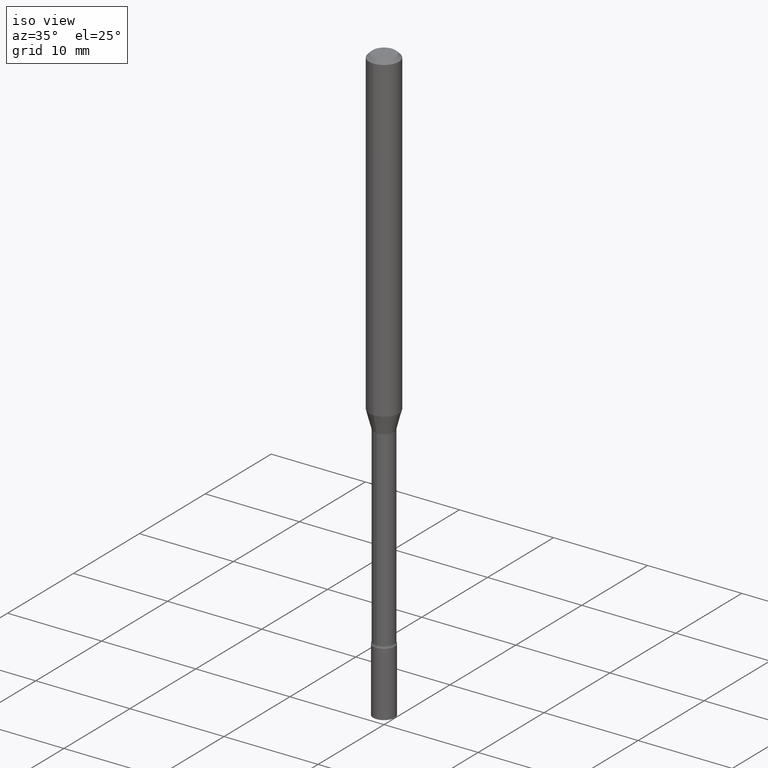
[diagram: clean part render]
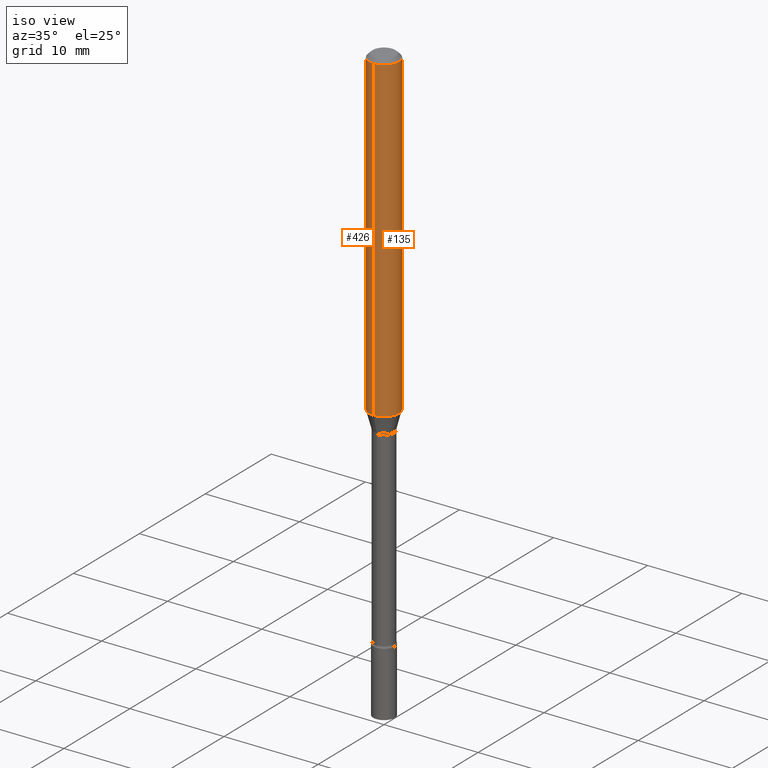
[diagram: same view with one multi-face feature highlighted, each face labeled with its STEP entity id]
A machine part, iso view. The highlighted faces form ONE feature: a constant-radius fillet chain: 2 tangent blend faces with common blend radius 1.5875 mm. The faces share edges in the B-rep.
Their STEP definitions:
[1] entity #135 (Cylinder):
#22 = DIRECTION ( 'NONE',  ( -6.982962677686265922E-15, -1.000000000000000000, 3.491461781097611808E-15 ) ) ;
#46 = DIRECTION ( 'NONE',  ( -2.445482463285848698E-29, 3.491461781097612203E-15, 1.000000000000000000 ) ) ;
#50 = VECTOR ( 'NONE', #505, 39.37007874015748143 ) ;
#59 = CARTESIAN_POINT ( 'NONE',  ( 4.440892098500625669E-16, 0.06250000000000000000, -2.182163613186007380E-16 ) ) ;
#73 = VERTEX_POINT ( 'NONE', #434 ) ;
#74 = EDGE_LOOP ( 'NONE', ( #249, #246, #189, #501 ) ) ;
#86 = DIRECTION ( 'NONE',  ( -6.982962677686265922E-15, -1.000000000000000000, 3.483106191921935554E-15 ) ) ;
#88 = EDGE_CURVE ( 'NONE', #119, #493, #139, .T. ) ;
#103 = EDGE_CURVE ( 'NONE', #73, #452, #424, .T. ) ;
#119 = VERTEX_POINT ( 'NONE', #515 ) ;
#135 = ADVANCED_FACE ( 'NONE', ( #274 ), #503, .T. ) ;
#139 = LINE ( 'NONE', #310, #244 ) ;
#184 = CIRCLE ( 'NONE', #478, 0.06250000000000000000 ) ;
#189 = ORIENTED_EDGE ( 'NONE', *, *, #368, .F. ) ;
#244 = VECTOR ( 'NONE', #463, 39.37007874015748143 ) ;
#246 = ORIENTED_EDGE ( 'NONE', *, *, #103, .T. ) ;
#249 = ORIENTED_EDGE ( 'NONE', *, *, #491, .T. ) ;
#255 = CARTESIAN_POINT ( 'NONE',  ( 3.668223694928780264E-31, -5.237192671646429323E-17, -0.01500000000000003067 ) ) ;
#274 = FACE_OUTER_BOUND ( 'NONE', #74, .T. ) ;
#310 = CARTESIAN_POINT ( 'NONE',  ( -4.364351673553916201E-16, -0.06250000000000000000, 2.182163613186007380E-16 ) ) ;
#339 = CARTESIAN_POINT ( 'NONE',  ( -4.364351673553912750E-16, -0.06250000000000005551, -0.01499999999999981209 ) ) ;
#353 = CARTESIAN_POINT ( 'NONE',  ( 0.000000000000000000, 0.000000000000000000, 0.000000000000000000 ) ) ;
#364 = CIRCLE ( 'NONE', #461, 0.06250000000000000000 ) ;
#368 = EDGE_CURVE ( 'NONE', #493, #452, #184, .T. ) ;
#370 = AXIS2_PLACEMENT_3D ( 'NONE', #353, #431, #22 ) ;
#395 = CARTESIAN_POINT ( 'NONE',  ( 4.440892098500956497E-16, 0.06249999999999993755, -0.01500000000000024751 ) ) ;
#411 = CARTESIAN_POINT ( 'NONE',  ( 3.288226468865476248E-29, -4.694663411411839177E-15, -1.344612573687109069 ) ) ;
#415 = DIRECTION ( 'NONE',  ( -2.445482463285848698E-29, 3.491461781097612203E-15, 1.000000000000000000 ) ) ;
#417 = DIRECTION ( 'NONE',  ( -6.982962677686265922E-15, -1.000000000000000000, 4.370956789862821150E-15 ) ) ;
#424 = LINE ( 'NONE', #59, #50 ) ;
#431 = DIRECTION ( 'NONE',  ( -2.445482463285848698E-29, 3.491461781097612203E-15, 1.000000000000000000 ) ) ;
#434 = CARTESIAN_POINT ( 'NONE',  ( 4.440892098500956497E-16, 0.06249999999999533706, -1.344612573687109514 ) ) ;
#452 = VERTEX_POINT ( 'NONE', #395 ) ;
#461 = AXIS2_PLACEMENT_3D ( 'NONE', #411, #46, #417 ) ;
#463 = DIRECTION ( 'NONE',  ( -2.445482463285848698E-29, 3.491461781097612203E-15, 1.000000000000000000 ) ) ;
#478 = AXIS2_PLACEMENT_3D ( 'NONE', #255, #415, #86 ) ;
#491 = EDGE_CURVE ( 'NONE', #119, #73, #364, .T. ) ;
#493 = VERTEX_POINT ( 'NONE', #339 ) ;
#501 = ORIENTED_EDGE ( 'NONE', *, *, #88, .F. ) ;
#503 = CYLINDRICAL_SURFACE ( 'NONE', #370, 0.06250000000000000000 ) ;
#505 = DIRECTION ( 'NONE',  ( -2.445482463285848698E-29, 3.491461781097612203E-15, 1.000000000000000000 ) ) ;
#515 = CARTESIAN_POINT ( 'NONE',  ( -4.364351673553584879E-16, -0.06250000000000466294, -1.344612573687108847 ) ) ;
[2] entity #426 (Cylinder):
#32 = ORIENTED_EDGE ( 'NONE', *, *, #88, .T. ) ;
#47 = CARTESIAN_POINT ( 'NONE',  ( 3.668223694928780264E-31, -5.237192671646429323E-17, -0.01500000000000003067 ) ) ;
#50 = VECTOR ( 'NONE', #505, 39.37007874015748143 ) ;
#59 = CARTESIAN_POINT ( 'NONE',  ( 4.440892098500625669E-16, 0.06250000000000000000, -2.182163613186007380E-16 ) ) ;
#73 = VERTEX_POINT ( 'NONE', #434 ) ;
#76 = DIRECTION ( 'NONE',  ( -2.445482463285848698E-29, 3.491461781097612203E-15, 1.000000000000000000 ) ) ;
#81 = CARTESIAN_POINT ( 'NONE',  ( 3.288226468865476248E-29, -4.694663411411839177E-15, -1.344612573687109069 ) ) ;
#88 = EDGE_CURVE ( 'NONE', #119, #493, #139, .T. ) ;
#100 = CIRCLE ( 'NONE', #188, 0.06250000000000000000 ) ;
#103 = EDGE_CURVE ( 'NONE', #73, #452, #424, .T. ) ;
#115 = FACE_OUTER_BOUND ( 'NONE', #199, .T. ) ;
#117 = CIRCLE ( 'NONE', #433, 0.06250000000000000000 ) ;
#119 = VERTEX_POINT ( 'NONE', #515 ) ;
#139 = LINE ( 'NONE', #310, #244 ) ;
#154 = ORIENTED_EDGE ( 'NONE', *, *, #103, .F. ) ;
#188 = AXIS2_PLACEMENT_3D ( 'NONE', #81, #76, #380 ) ;
#199 = EDGE_LOOP ( 'NONE', ( #154, #517, #32, #332 ) ) ;
#212 = DIRECTION ( 'NONE',  ( -2.445482463285848698E-29, 3.491461781097612203E-15, 1.000000000000000000 ) ) ;
#244 = VECTOR ( 'NONE', #463, 39.37007874015748143 ) ;
#279 = CYLINDRICAL_SURFACE ( 'NONE', #355, 0.06250000000000000000 ) ;
#287 = CARTESIAN_POINT ( 'NONE',  ( 0.000000000000000000, 0.000000000000000000, 0.000000000000000000 ) ) ;
#310 = CARTESIAN_POINT ( 'NONE',  ( -4.364351673553916201E-16, -0.06250000000000000000, 2.182163613186007380E-16 ) ) ;
#320 = DIRECTION ( 'NONE',  ( -6.982962677686265922E-15, -1.000000000000000000, 3.491461781097611808E-15 ) ) ;
#332 = ORIENTED_EDGE ( 'NONE', *, *, #348, .F. ) ;
#339 = CARTESIAN_POINT ( 'NONE',  ( -4.364351673553912750E-16, -0.06250000000000005551, -0.01499999999999981209 ) ) ;
#348 = EDGE_CURVE ( 'NONE', #452, #493, #117, .T. ) ;
#355 = AXIS2_PLACEMENT_3D ( 'NONE', #287, #366, #320 ) ;
#366 = DIRECTION ( 'NONE',  ( -2.445482463285848698E-29, 3.491461781097612203E-15, 1.000000000000000000 ) ) ;
#377 = DIRECTION ( 'NONE',  ( -6.982962677686265922E-15, -1.000000000000000000, 3.483106191921935554E-15 ) ) ;
#380 = DIRECTION ( 'NONE',  ( -6.982962677686265922E-15, -1.000000000000000000, 4.370956789862821150E-15 ) ) ;
#395 = CARTESIAN_POINT ( 'NONE',  ( 4.440892098500956497E-16, 0.06249999999999993755, -0.01500000000000024751 ) ) ;
#424 = LINE ( 'NONE', #59, #50 ) ;
#426 = ADVANCED_FACE ( 'NONE', ( #115 ), #279, .T. ) ;
#433 = AXIS2_PLACEMENT_3D ( 'NONE', #47, #212, #377 ) ;
#434 = CARTESIAN_POINT ( 'NONE',  ( 4.440892098500956497E-16, 0.06249999999999533706, -1.344612573687109514 ) ) ;
#452 = VERTEX_POINT ( 'NONE', #395 ) ;
#463 = DIRECTION ( 'NONE',  ( -2.445482463285848698E-29, 3.491461781097612203E-15, 1.000000000000000000 ) ) ;
#483 = EDGE_CURVE ( 'NONE', #73, #119, #100, .T. ) ;
#493 = VERTEX_POINT ( 'NONE', #339 ) ;
#505 = DIRECTION ( 'NONE',  ( -2.445482463285848698E-29, 3.491461781097612203E-15, 1.000000000000000000 ) ) ;
#515 = CARTESIAN_POINT ( 'NONE',  ( -4.364351673553584879E-16, -0.06250000000000466294, -1.344612573687108847 ) ) ;
#517 = ORIENTED_EDGE ( 'NONE', *, *, #483, .T. ) ;